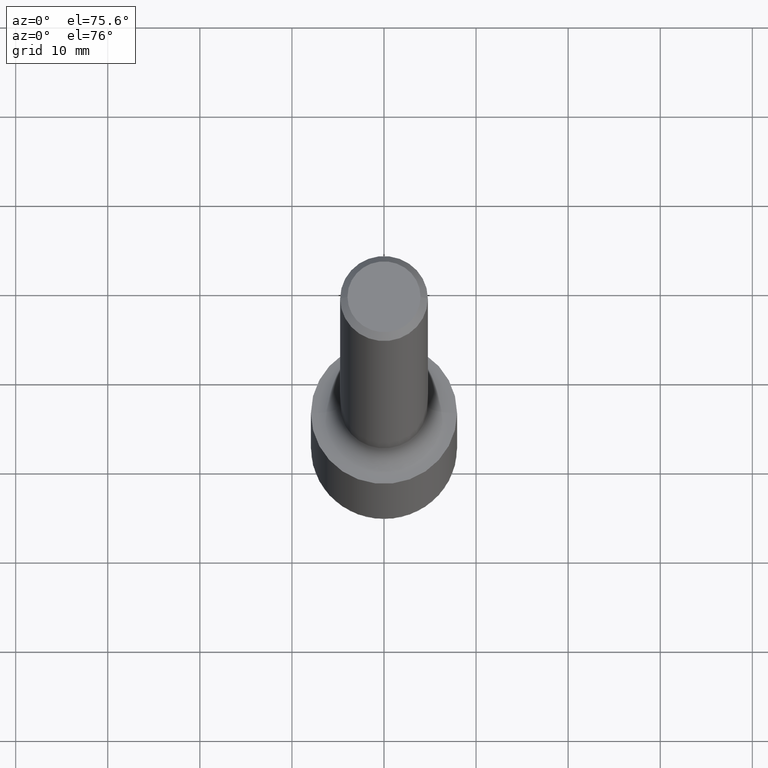
[diagram: clean part render]
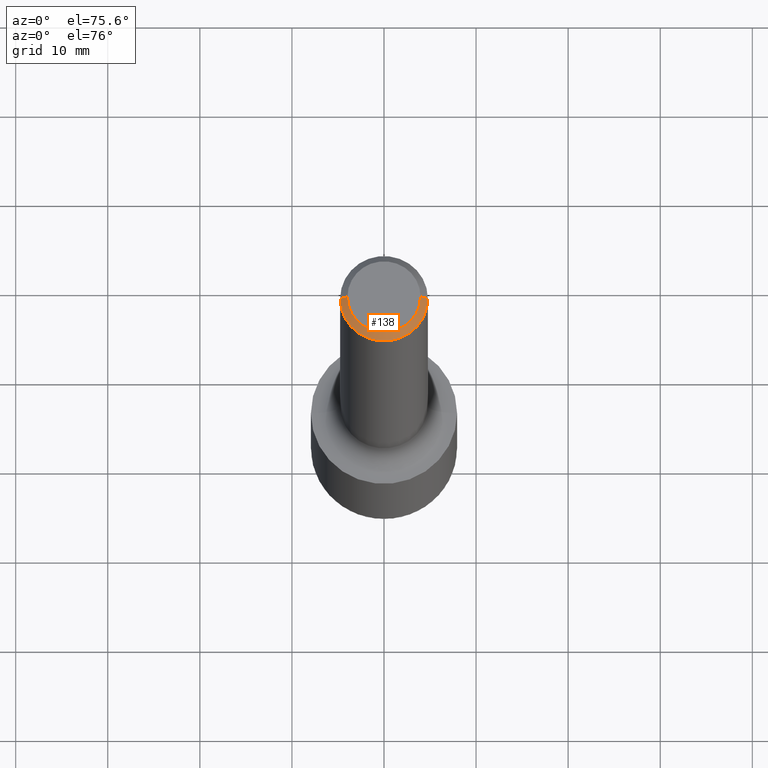
[diagram: same view with one face highlighted and labeled with its STEP entity id]
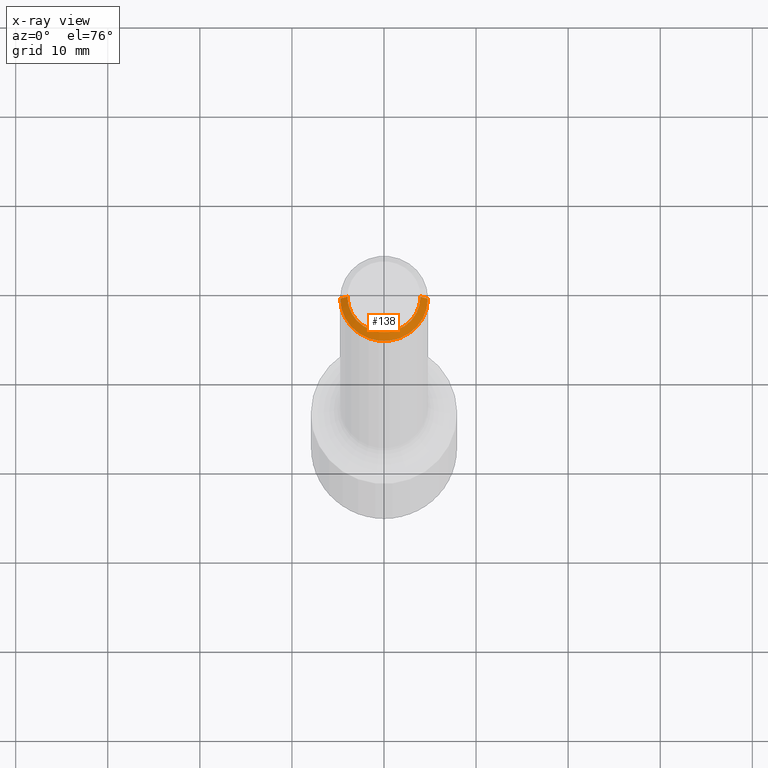
[diagram: x-ray of the same camera — body ghosted, the highlighted face saturated]
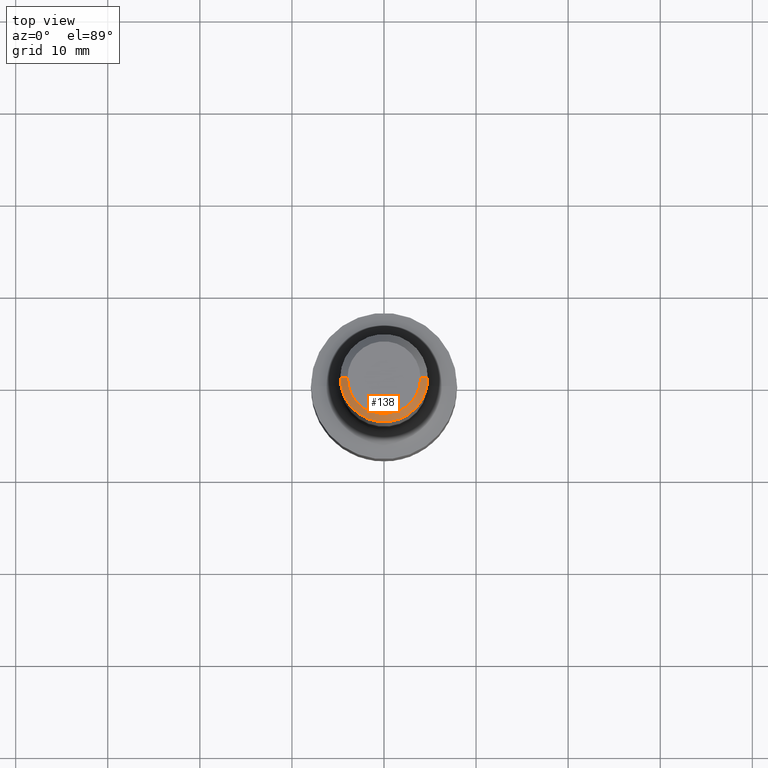
[diagram: same view with one face highlighted and labeled with its STEP entity id]
A machine part, auxiliary view. The second image highlights one B-rep face of the part: STEP entity #138.
The next image is the same camera in x-ray: the body ghosted, the highlighted face saturated — about 0% of this face is hidden behind the body in this view.
A second angle (top view) of the same face is appended — the face is thin or edge-on in the first view.
In plain terms, the highlighted conical surface has half-angle 45 deg.
Its self-contained STEP definition (entity closure, byte-faithful):
#5 = CARTESIAN_POINT ( 'NONE',  ( -1.871772216193331159E-46, 2.672394653685611172E-32, 7.654042494670965249E-18 ) ) ;
#9 = VECTOR ( 'NONE', #235, 39.37007874015748143 ) ;
#22 = ORIENTED_EDGE ( 'NONE', *, *, #197, .T. ) ;
#32 = DIRECTION ( 'NONE',  ( 1.000000000000000000, -6.982962677686265922E-15, 0.000000000000000000 ) ) ;
#40 = AXIS2_PLACEMENT_3D ( 'NONE', #385, #517, #32 ) ;
#71 = DIRECTION ( 'NONE',  ( 2.445468806185136597E-29, -3.491481338843145583E-15, -1.000000000000000000 ) ) ;
#87 = EDGE_CURVE ( 'NONE', #420, #88, #326, .T. ) ;
#88 = VERTEX_POINT ( 'NONE', #176 ) ;
#109 = LINE ( 'NONE', #315, #174 ) ;
#132 = DIRECTION ( 'NONE',  ( -2.445468806185136597E-29, 3.491481338843145583E-15, 1.000000000000000000 ) ) ;
#138 = ADVANCED_FACE ( 'NONE', ( #152 ), #333, .T. ) ;
#146 = ORIENTED_EDGE ( 'NONE', *, *, #87, .F. ) ;
#152 = FACE_OUTER_BOUND ( 'NONE', #322, .T. ) ;
#174 = VECTOR ( 'NONE', #505, 39.37007874015748143 ) ;
#176 = CARTESIAN_POINT ( 'NONE',  ( 0.1563000000000000500, -1.233786714702880152E-15, 7.654042494679095754E-18 ) ) ;
#177 = VERTEX_POINT ( 'NONE', #233 ) ;
#181 = DIRECTION ( 'NONE',  ( 1.000000000000000000, -6.982962677686266711E-15, 4.876046809215620980E-29 ) ) ;
#197 = EDGE_CURVE ( 'NONE', #177, #241, #309, .T. ) ;
#199 = CARTESIAN_POINT ( 'NONE',  ( -0.1875000000000000278, 1.200371284294268058E-15, -0.03120000000000022755 ) ) ;
#220 = DIRECTION ( 'NONE',  ( -1.000000000000000000, 6.982962677686265922E-15, 0.000000000000000000 ) ) ;
#233 = CARTESIAN_POINT ( 'NONE',  ( -0.1875000000000000278, 1.200371284294268058E-15, -0.03120000000000022755 ) ) ;
#234 = EDGE_CURVE ( 'NONE', #88, #241, #109, .T. ) ;
#235 = DIRECTION ( 'NONE',  ( -0.7071067811865444641, 2.468850131082224717E-15, -0.7071067811865505703 ) ) ;
#241 = VERTEX_POINT ( 'NONE', #389 ) ;
#263 = AXIS2_PLACEMENT_3D ( 'NONE', #438, #71, #220 ) ;
#275 = AXIS2_PLACEMENT_3D ( 'NONE', #5, #132, #181 ) ;
#276 = ORIENTED_EDGE ( 'NONE', *, *, #289, .T. ) ;
#289 = EDGE_CURVE ( 'NONE', #420, #177, #403, .T. ) ;
#309 = CIRCLE ( 'NONE', #40, 0.1875000000000000278 ) ;
#315 = CARTESIAN_POINT ( 'NONE',  ( 0.1875000000000000278, -1.395277592354069315E-15, -0.03120000000000022755 ) ) ;
#322 = EDGE_LOOP ( 'NONE', ( #414, #146, #276, #22 ) ) ;
#326 = CIRCLE ( 'NONE', #275, 0.1563000000000000500 ) ;
#333 = CONICAL_SURFACE ( 'NONE', #263, 0.1875000000000000278, 0.7853981633974439491 ) ;
#381 = CARTESIAN_POINT ( 'NONE',  ( -0.1563000000000000500, 1.145904175408315963E-15, 7.654042494663141351E-18 ) ) ;
#385 = CARTESIAN_POINT ( 'NONE',  ( 7.629862675297681829E-31, -1.089342177719069380E-16, -0.03120000000000022755 ) ) ;
#389 = CARTESIAN_POINT ( 'NONE',  ( 0.1875000000000000278, -1.395277592354069315E-15, -0.03120000000000022755 ) ) ;
#403 = LINE ( 'NONE', #199, #9 ) ;
#414 = ORIENTED_EDGE ( 'NONE', *, *, #234, .F. ) ;
#420 = VERTEX_POINT ( 'NONE', #381 ) ;
#438 = CARTESIAN_POINT ( 'NONE',  ( 7.629862675297681829E-31, -1.089342177719069380E-16, -0.03120000000000022755 ) ) ;
#505 = DIRECTION ( 'NONE',  ( 0.7071067811865444641, -7.319954787623245001E-15, -0.7071067811865505703 ) ) ;
#517 = DIRECTION ( 'NONE',  ( -2.445468806185136597E-29, 3.491481338843145583E-15, 1.000000000000000000 ) ) ;